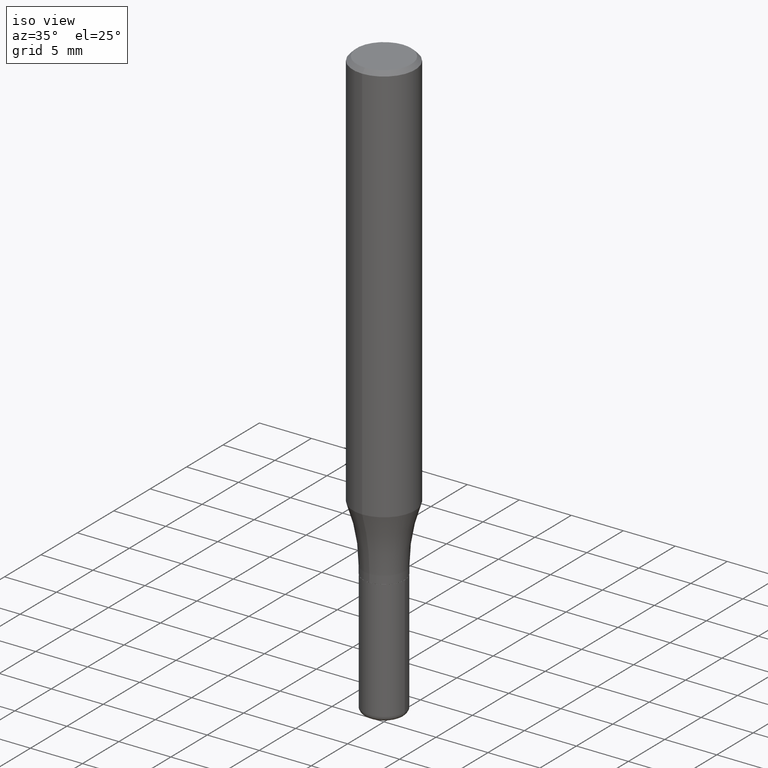
[diagram: clean part render]
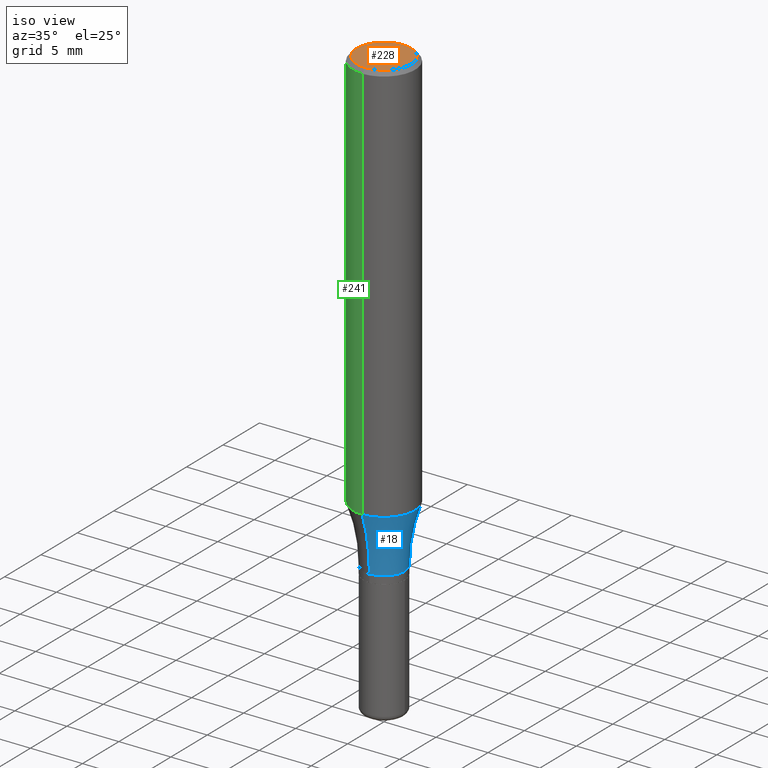
[diagram: same view with three faces highlighted in distinct colors, each labeled with its STEP entity id]
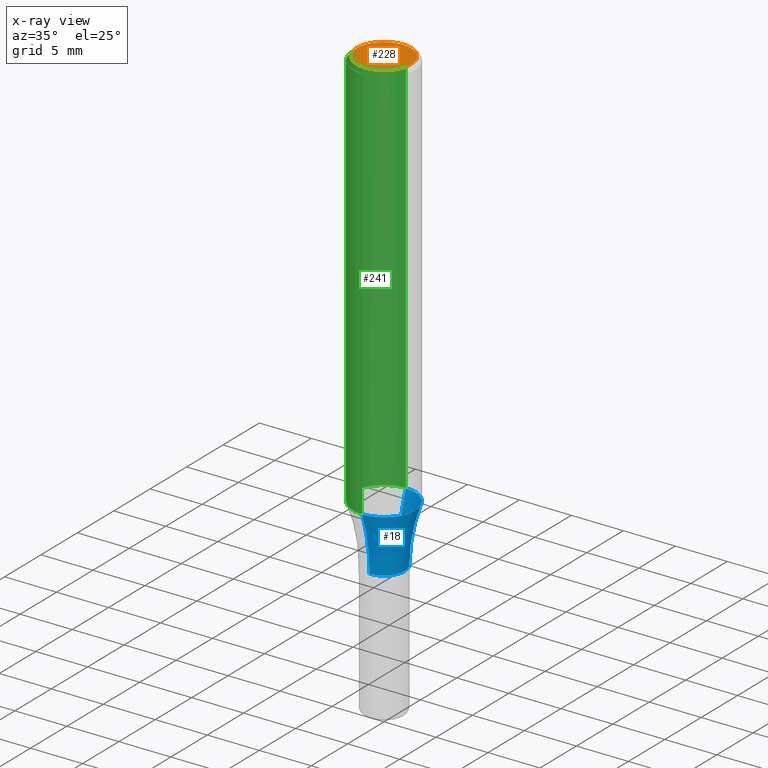
[diagram: x-ray of the same camera — body ghosted, the three highlighted faces saturated]
A machine part, iso view with three faces highlighted in distinct colors.
The next image is the same camera in x-ray (body ghosted, the three faces saturated) — at least one of them is partly hidden behind the body in this view.
Their STEP definitions:

[orange] entity #228 — the highlighted planar face has unit normal (0, -0, -1).
#4 = DIRECTION ( 'NONE',  ( 6.982962677686265922E-15, 1.000000000000000000, -3.492184190823146687E-15 ) ) ;
#52 = EDGE_CURVE ( 'NONE', #381, #406, #443, .T. ) ;
#80 = AXIS2_PLACEMENT_3D ( 'NONE', #289, #364, #4 ) ;
#150 = PLANE ( 'NONE',  #80 ) ;
#155 = CARTESIAN_POINT ( 'NONE',  ( -6.681079993535838680E-45, 9.542646952925085965E-31, 2.732572634055644223E-16 ) ) ;
#167 = CARTESIAN_POINT ( 'NONE',  ( -7.587710785535310407E-16, -0.1031000000000000111, 6.333014534794309554E-16 ) ) ;
#196 = CARTESIAN_POINT ( 'NONE',  ( 7.723156721521011834E-16, 0.1031000000000000111, -8.678692666830198749E-17 ) ) ;
#228 = ADVANCED_FACE ( 'NONE', ( #509 ), #150, .F. ) ;
#234 = CIRCLE ( 'NONE', #262, 0.1031000000000000111 ) ;
#251 = EDGE_LOOP ( 'NONE', ( #379, #288 ) ) ;
#262 = AXIS2_PLACEMENT_3D ( 'NONE', #320, #361, #517 ) ;
#288 = ORIENTED_EDGE ( 'NONE', *, *, #296, .T. ) ;
#289 = CARTESIAN_POINT ( 'NONE',  ( 7.199434520694541042E-16, 0.1031000000000000111, -2.234155583710842233E-16 ) ) ;
#296 = EDGE_CURVE ( 'NONE', #406, #381, #234, .T. ) ;
#320 = CARTESIAN_POINT ( 'NONE',  ( -6.681079993535838680E-45, 9.542646952925085965E-31, 2.732572634055644223E-16 ) ) ;
#361 = DIRECTION ( 'NONE',  ( -2.444978007270708003E-29, 3.492184190823146687E-15, 1.000000000000000000 ) ) ;
#364 = DIRECTION ( 'NONE',  ( 2.444978007270707723E-29, -3.492184190823146687E-15, -1.000000000000000000 ) ) ;
#379 = ORIENTED_EDGE ( 'NONE', *, *, #52, .T. ) ;
#381 = VERTEX_POINT ( 'NONE', #196 ) ;
#397 = DIRECTION ( 'NONE',  ( -6.982962677686265922E-15, -1.000000000000000000, 3.492184190823147082E-15 ) ) ;
#406 = VERTEX_POINT ( 'NONE', #167 ) ;
#407 = AXIS2_PLACEMENT_3D ( 'NONE', #155, #488, #397 ) ;
#443 = CIRCLE ( 'NONE', #407, 0.1031000000000000111 ) ;
#488 = DIRECTION ( 'NONE',  ( -2.444978007270708003E-29, 3.492184190823146687E-15, 1.000000000000000000 ) ) ;
#509 = FACE_OUTER_BOUND ( 'NONE', #251, .T. ) ;
#517 = DIRECTION ( 'NONE',  ( -6.982962677686265922E-15, -1.000000000000000000, 3.492184190823147082E-15 ) ) ;

[blue] entity #18 — the highlighted toroidal blend (fillet) surface has major radius 17.8753 mm and minor (blend) radius 15.875 mm.
#17 = AXIS2_PLACEMENT_3D ( 'NONE', #36, #79, #227 ) ;
#18 = ADVANCED_FACE ( 'NONE', ( #129 ), #39, .F. ) ;
#30 = EDGE_CURVE ( 'NONE', #198, #519, #190, .T. ) ;
#36 = CARTESIAN_POINT ( 'NONE',  ( 5.000444502911747562E-15, 0.7037499999999939915, -1.741700000000002690 ) ) ;
#39 = TOROIDAL_SURFACE ( 'NONE', #491, 0.7037500000000000977, 0.6250000000000000000 ) ;
#46 = DIRECTION ( 'NONE',  ( -6.982962677686266711E-15, -1.000000000000000000, 3.492184190823146293E-15 ) ) ;
#56 = CARTESIAN_POINT ( 'NONE',  ( 3.724768054275150993E-29, -5.320119884490468606E-15, -1.523436220366273686 ) ) ;
#79 = DIRECTION ( 'NONE',  ( 1.000000000000000000, -7.105427357601001070E-15, 4.926324115996358124E-29 ) ) ;
#84 = DIRECTION ( 'NONE',  ( -6.982962677686266711E-15, -1.000000000000000000, 0.000000000000000000 ) ) ;
#90 = CARTESIAN_POINT ( 'NONE',  ( -4.914259984421667441E-15, -0.7037500000000062039, -1.741699999999997805 ) ) ;
#106 = CIRCLE ( 'NONE', #17, 0.6249999999999998890 ) ;
#127 = VERTEX_POINT ( 'NONE', #137 ) ;
#129 = FACE_OUTER_BOUND ( 'NONE', #511, .T. ) ;
#137 = CARTESIAN_POINT ( 'NONE',  ( -8.246878922347104959E-16, -0.1181000000000053535, -1.523436220366273020 ) ) ;
#175 = CARTESIAN_POINT ( 'NONE',  ( 4.259273019732652912E-29, -6.081113047863106923E-15, -1.741700000000000248 ) ) ;
#190 = CIRCLE ( 'NONE', #292, 0.07875000000000008382 ) ;
#198 = VERTEX_POINT ( 'NONE', #466 ) ;
#211 = ORIENTED_EDGE ( 'NONE', *, *, #478, .F. ) ;
#215 = ORIENTED_EDGE ( 'NONE', *, *, #231, .T. ) ;
#227 = DIRECTION ( 'NONE',  ( 7.105427357601001859E-15, 1.000000000000000000, 0.000000000000000000 ) ) ;
#231 = EDGE_CURVE ( 'NONE', #127, #198, #269, .T. ) ;
#232 = AXIS2_PLACEMENT_3D ( 'NONE', #56, #253, #450 ) ;
#235 = CARTESIAN_POINT ( 'NONE',  ( 4.258418195263392864E-29, -6.082337205156674734E-15, -1.741700000000000248 ) ) ;
#253 = DIRECTION ( 'NONE',  ( -2.444978007270708003E-29, 3.492184190823146687E-15, 1.000000000000000000 ) ) ;
#265 = ORIENTED_EDGE ( 'NONE', *, *, #352, .F. ) ;
#269 = CIRCLE ( 'NONE', #483, 0.6250000000000001110 ) ;
#270 = DIRECTION ( 'NONE',  ( -2.444978007270708003E-29, 3.492184190823146687E-15, 1.000000000000000000 ) ) ;
#292 = AXIS2_PLACEMENT_3D ( 'NONE', #235, #270, #480 ) ;
#307 = ORIENTED_EDGE ( 'NONE', *, *, #30, .T. ) ;
#322 = DIRECTION ( 'NONE',  ( -1.000000000000000000, 6.982962677686265922E-15, -4.883557194083112340E-29 ) ) ;
#337 = DIRECTION ( 'NONE',  ( -2.444978007270708003E-29, 3.492184190823146687E-15, 1.000000000000000000 ) ) ;
#352 = EDGE_CURVE ( 'NONE', #496, #519, #106, .T. ) ;
#412 = CARTESIAN_POINT ( 'NONE',  ( 6.993516876719194216E-16, 0.07874999999999400535, -1.741700000000000470 ) ) ;
#450 = DIRECTION ( 'NONE',  ( -6.982962677686265922E-15, -1.000000000000000000, 4.626330217890367758E-15 ) ) ;
#466 = CARTESIAN_POINT ( 'NONE',  ( -5.499083108677514374E-16, -0.07875000000000616229, -1.741699999999999804 ) ) ;
#468 = CIRCLE ( 'NONE', #232, 0.1181000000000000383 ) ;
#478 = EDGE_CURVE ( 'NONE', #127, #496, #468, .T. ) ;
#480 = DIRECTION ( 'NONE',  ( -6.982962677686265133E-15, -1.000000000000000000, 3.469013325287949743E-15 ) ) ;
#483 = AXIS2_PLACEMENT_3D ( 'NONE', #90, #322, #84 ) ;
#491 = AXIS2_PLACEMENT_3D ( 'NONE', #175, #337, #46 ) ;
#496 = VERTEX_POINT ( 'NONE', #500 ) ;
#500 = CARTESIAN_POINT ( 'NONE',  ( 8.391509709327157666E-16, 0.1180999999999946398, -1.523436220366274130 ) ) ;
#511 = EDGE_LOOP ( 'NONE', ( #265, #211, #215, #307 ) ) ;
#519 = VERTEX_POINT ( 'NONE', #412 ) ;

[green] entity #241 — the highlighted cylindrical surface (partial cylindrical patch) has radius 2.9997 mm, axis along (-0, 0, 1).
#35 = CARTESIAN_POINT ( 'NONE',  ( 3.724768054275150993E-29, -5.320119884490468606E-15, -1.523436220366273686 ) ) ;
#50 = VECTOR ( 'NONE', #474, 39.37007874015748143 ) ;
#51 = CYLINDRICAL_SURFACE ( 'NONE', #59, 0.1181000000000000105 ) ;
#59 = AXIS2_PLACEMENT_3D ( 'NONE', #494, #159, #318 ) ;
#75 = DIRECTION ( 'NONE',  ( -6.982962677686265922E-15, -1.000000000000000000, 3.487819265831411744E-15 ) ) ;
#85 = EDGE_CURVE ( 'NONE', #496, #127, #302, .T. ) ;
#98 = ORIENTED_EDGE ( 'NONE', *, *, #85, .T. ) ;
#122 = VERTEX_POINT ( 'NONE', #283 ) ;
#127 = VERTEX_POINT ( 'NONE', #137 ) ;
#128 = ORIENTED_EDGE ( 'NONE', *, *, #388, .F. ) ;
#132 = EDGE_LOOP ( 'NONE', ( #128, #98, #135, #164 ) ) ;
#135 = ORIENTED_EDGE ( 'NONE', *, *, #348, .T. ) ;
#137 = CARTESIAN_POINT ( 'NONE',  ( -8.246878922347104959E-16, -0.1181000000000053535, -1.523436220366273020 ) ) ;
#156 = CIRCLE ( 'NONE', #313, 0.1180999999999999966 ) ;
#159 = DIRECTION ( 'NONE',  ( -2.444978007270708003E-29, 3.492184190823146687E-15, 1.000000000000000000 ) ) ;
#164 = ORIENTED_EDGE ( 'NONE', *, *, #365, .F. ) ;
#197 = LINE ( 'NONE', #395, #50 ) ;
#200 = DIRECTION ( 'NONE',  ( -2.444978007270708003E-29, 3.492184190823146687E-15, 1.000000000000000000 ) ) ;
#201 = DIRECTION ( 'NONE',  ( -2.444978007270708003E-29, 3.492184190823146687E-15, 1.000000000000000000 ) ) ;
#214 = VERTEX_POINT ( 'NONE', #347 ) ;
#241 = ADVANCED_FACE ( 'NONE', ( #401 ), #51, .T. ) ;
#283 = CARTESIAN_POINT ( 'NONE',  ( 8.246878922347483612E-16, 0.1180999999999999411, -0.01500000000000009659 ) ) ;
#302 = CIRCLE ( 'NONE', #452, 0.1181000000000000383 ) ;
#313 = AXIS2_PLACEMENT_3D ( 'NONE', #481, #446, #75 ) ;
#318 = DIRECTION ( 'NONE',  ( -6.982962677686265922E-15, -1.000000000000000000, 3.492184190823147082E-15 ) ) ;
#347 = CARTESIAN_POINT ( 'NONE',  ( -8.102248135368174406E-16, -0.1181000000000000522, -0.01499999999999927260 ) ) ;
#348 = EDGE_CURVE ( 'NONE', #127, #214, #197, .T. ) ;
#365 = EDGE_CURVE ( 'NONE', #122, #214, #156, .T. ) ;
#376 = VECTOR ( 'NONE', #200, 39.37007874015748143 ) ;
#388 = EDGE_CURVE ( 'NONE', #496, #122, #485, .T. ) ;
#395 = CARTESIAN_POINT ( 'NONE',  ( -8.246878922347480654E-16, -0.1181000000000000105, 4.124269529362136880E-16 ) ) ;
#401 = FACE_OUTER_BOUND ( 'NONE', #132, .T. ) ;
#437 = CARTESIAN_POINT ( 'NONE',  ( 8.391509709326782957E-16, 0.1181000000000000105, -4.124269529362136880E-16 ) ) ;
#445 = DIRECTION ( 'NONE',  ( -6.982962677686265922E-15, -1.000000000000000000, 4.626330217890367758E-15 ) ) ;
#446 = DIRECTION ( 'NONE',  ( -2.444978007270708003E-29, 3.492184190823146687E-15, 1.000000000000000000 ) ) ;
#452 = AXIS2_PLACEMENT_3D ( 'NONE', #35, #201, #445 ) ;
#474 = DIRECTION ( 'NONE',  ( -2.444978007270708003E-29, 3.492184190823146687E-15, 1.000000000000000000 ) ) ;
#481 = CARTESIAN_POINT ( 'NONE',  ( 3.667467010905984653E-31, -5.238276286234609492E-17, -0.01499999999999968373 ) ) ;
#485 = LINE ( 'NONE', #437, #376 ) ;
#494 = CARTESIAN_POINT ( 'NONE',  ( 0.000000000000000000, 0.000000000000000000, 0.000000000000000000 ) ) ;
#496 = VERTEX_POINT ( 'NONE', #500 ) ;
#500 = CARTESIAN_POINT ( 'NONE',  ( 8.391509709327157666E-16, 0.1180999999999946398, -1.523436220366274130 ) ) ;